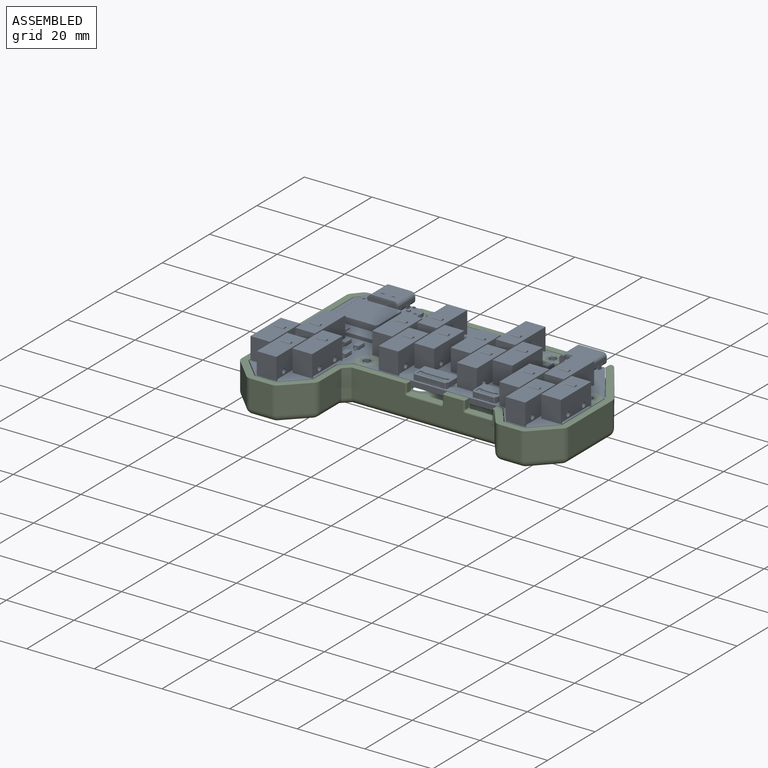
[diagram: assembled view]
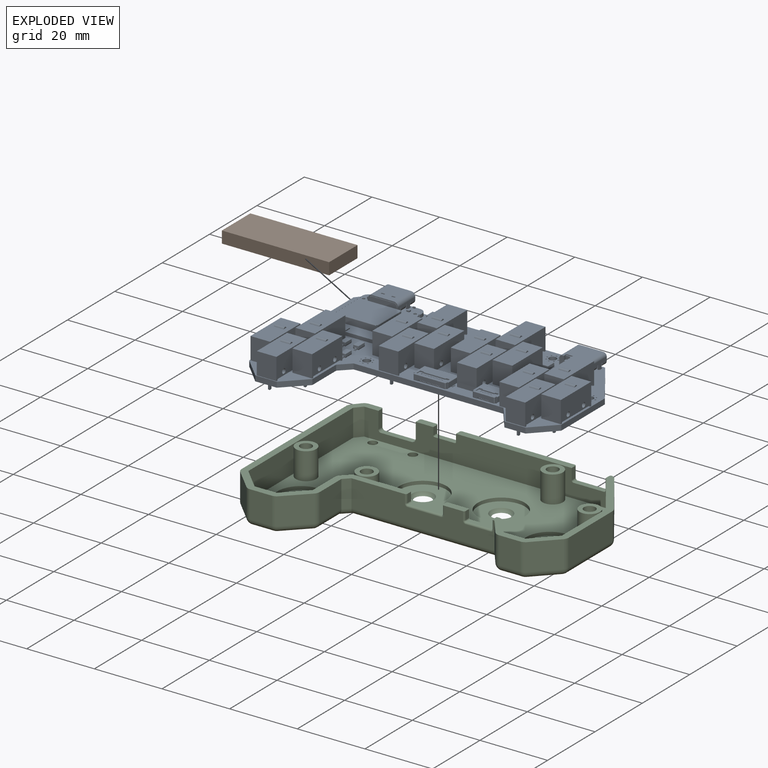
[diagram: exploded view]
GUIDED TOUR — FREECAD ASSEMBLY "left"

This assembly has 3 components, labeled P0..P2 below (a component is one placed body or linked part; the same part can appear more than once), held together by 0 modeled joints plus 2 derived contact edges. A joint is a constraint between two components; its type names the relative motion it leaves free:
  CONTACT — a derived adjacency edge — the two components touch in the source model (clearance under 2% of the assembly's diagonal); it is measured from the geometry, not a modeled constraint.
Axis/direction vectors are unit vectors and 'through' points are millimeter coordinates, both in the assembly's world frame.

MATES
  1. CONTACT "contact_0_1": P0 <-> P1, contact direction (-0.830, 0.554, -0.070) through (31.34, -14.37, -1.85) mm (derived from contact, not a modeled constraint)
  2. CONTACT "contact_0_2": P0 <-> P2, contact direction (0.000, 0.000, -1.000) through (59.84, -1.36, 0.00) mm (derived from contact, not a modeled constraint)

ASSEMBLY ORDER
  1. P0 — the base component [order heuristic]
  2. P2 — core [order heuristic]
  3. P1 [order verified]
Order-tag legend:
  [order verified] — this step's position reverses a verified removal order: the component was checked to insert without passing through the ones already placed.
  [order heuristic] — the first 2 components form the assembly's core: parts whose collision-free extraction could not be verified, listed in mate-graph order.

Of the 3 components, 2 carry a construction recipe — the FreeCAD feature program (sketches with constraints, then the solid features that consume them) that regenerates the part from scratch, quoted from this document or from the linked companion document it references; the rest are supplied as boundary geometry only. The tour below walks the components in assembly order: each is shown spotlighted twice — in the assembled view, then in the exploded view, where a leader line traces a displaced component back to its assembled socket (components that stay in place when exploded have no leader line; saturated green if recipe-attached, orange if geometry-only; every other component desaturated gray) — followed by its recipe or geometry summary and the mates that hold it.
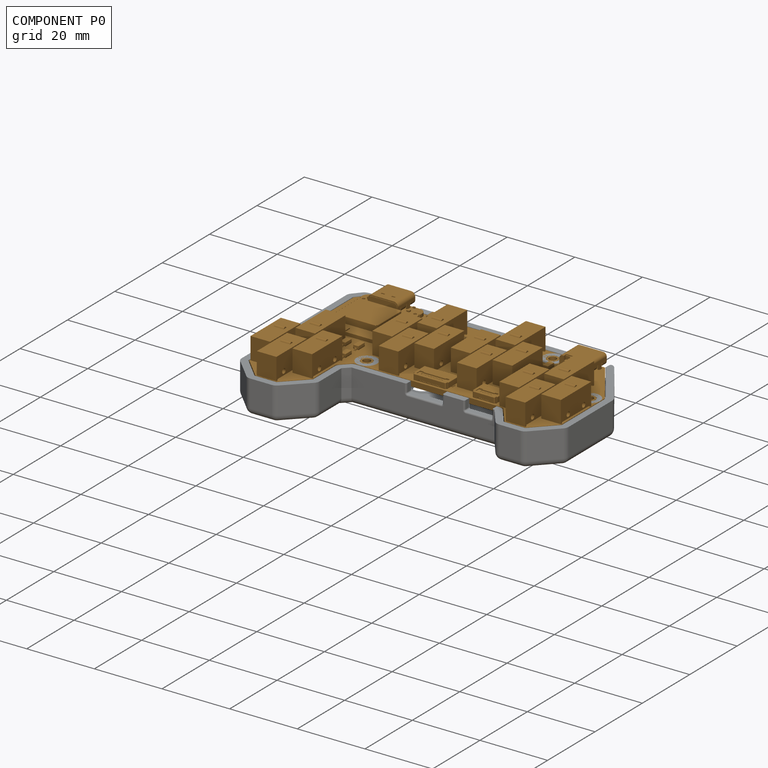
[diagram: component P0 — assembled]
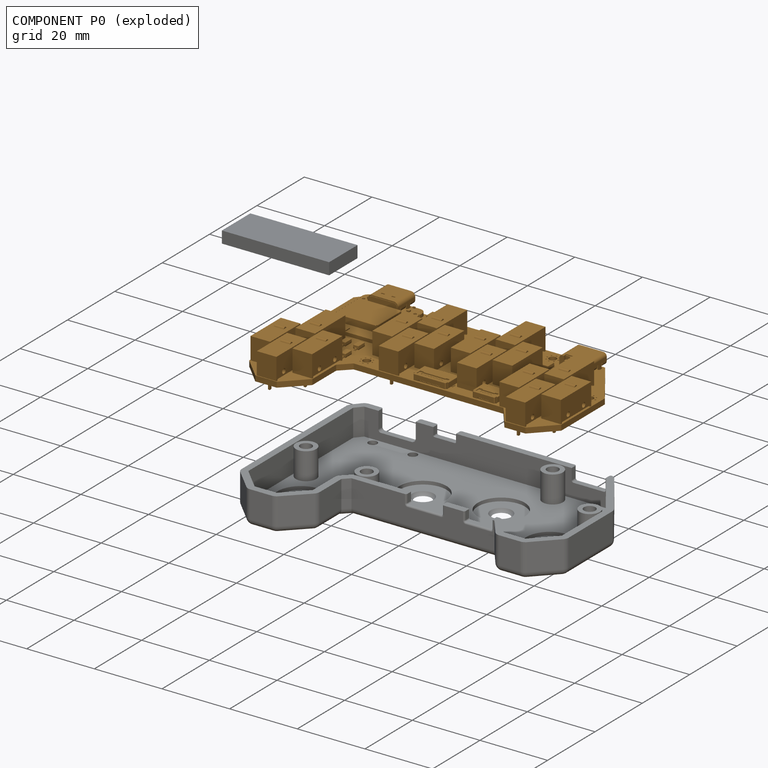
[diagram: component P0 — exploded]
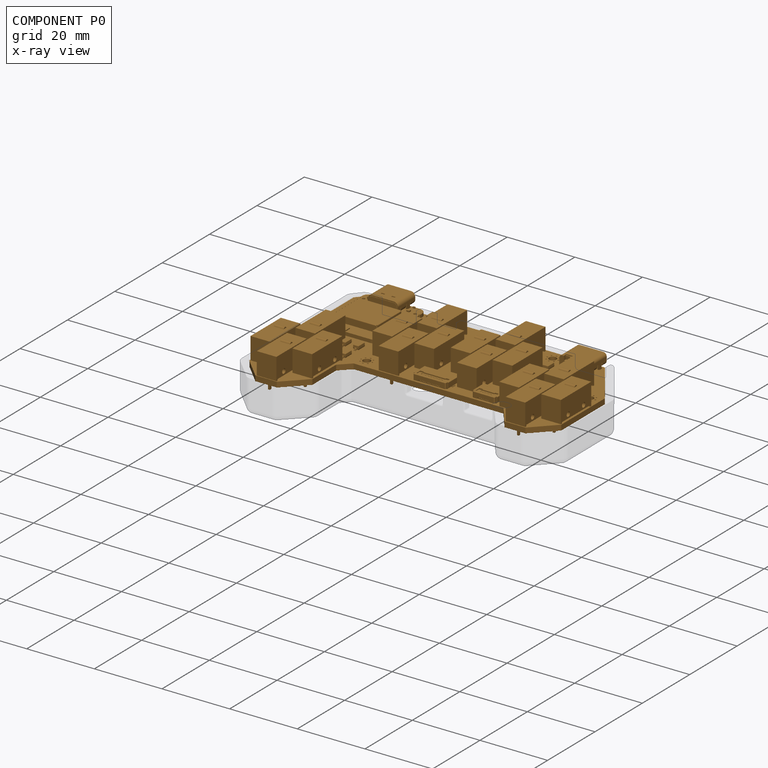
[diagram: component P0 — x-ray view]
COMPONENT P0 — geometry summary ("left"; no construction recipe available for this part):
  bounding box: 83.1 x 53.8 x 10.4 mm
  tessellated surface: 159,930 triangles
  volume: 12785 mm^3 (27% of its bounding box)
Held by: resting contact with P1 (derived edge); resting contact with P2 (derived edge).
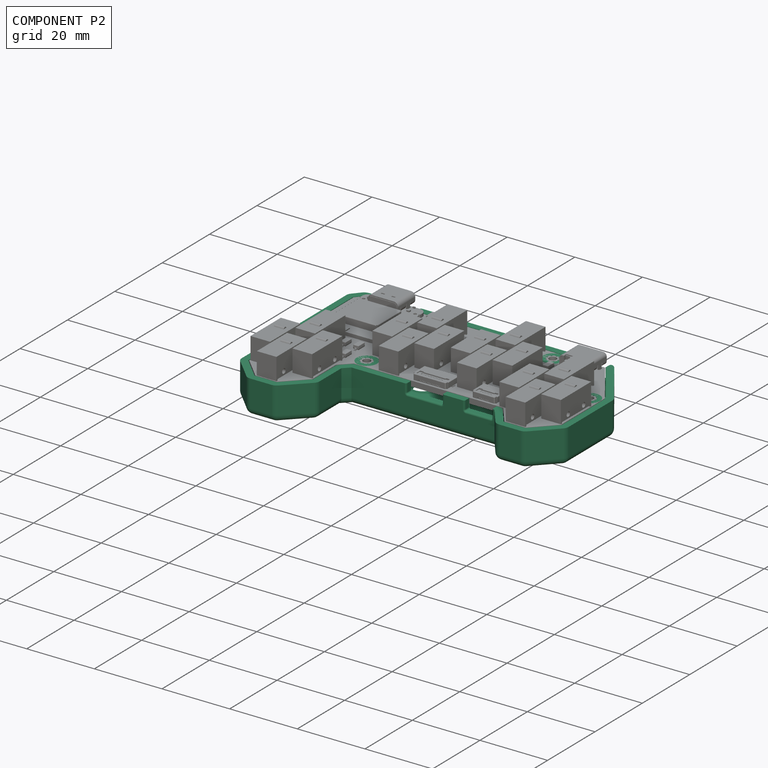
[diagram: component P2 — assembled]
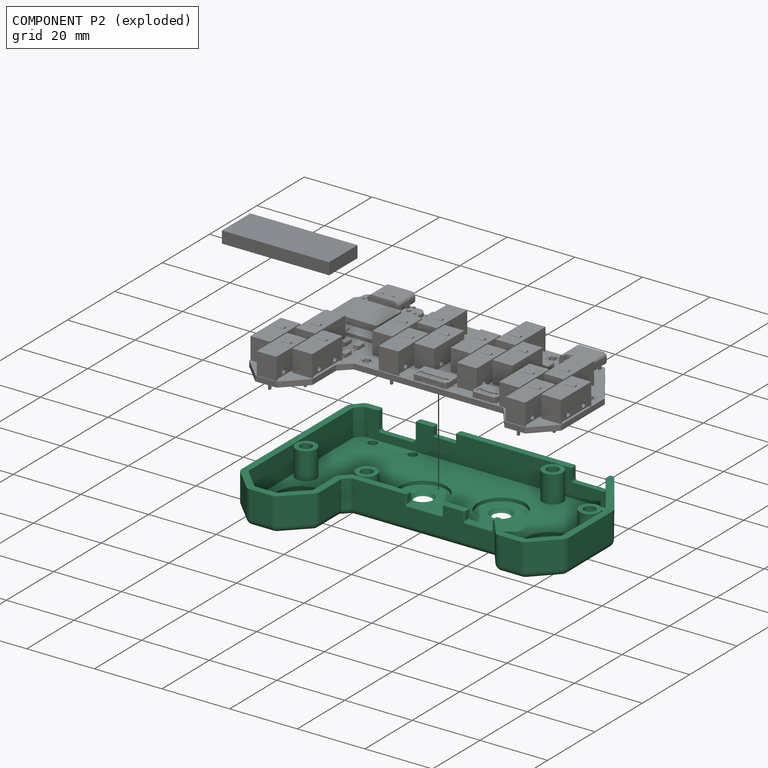
[diagram: component P2 — exploded]
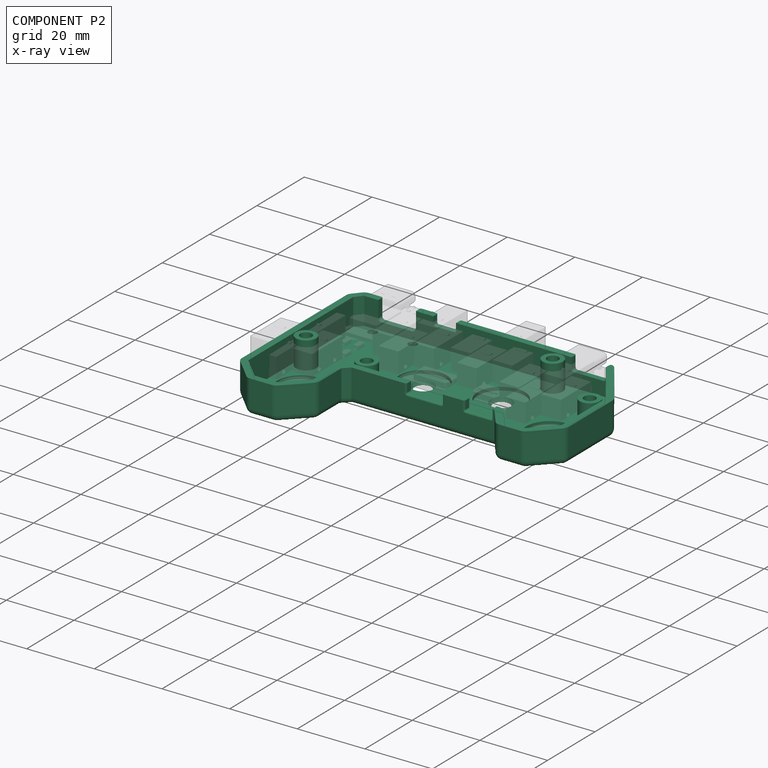
[diagram: component P2 — x-ray view]
COMPONENT P2 — recipe-attached ("case", modeled in this document).
Held by: resting contact with P0 (derived edge).
Construction recipe (the document's own serialized feature program — sketch geometry with constraints, then the solid features built on it; lengths are millimeters unless a unit is written):

FEATURE [PartDesign::SubShapeBinder] Binder
  BindCopyOnChange = 0
  BindMode = 0
  ClaimChildren = false
  Context = -> Part [Body.Binder.]
  Fuse = false
  MakeFace = true
  OffsetFill = false
  OffsetIntersection = false
  OffsetJoinType = 0
  OffsetOpenResult = false
  PartialLoad = false
  Refine = true
  Relative = true
  Support = -> [Board_f9e4[Board_Geoms_f9e4.Pcb_f9e4.Face140]]
  _Version = 2
FEATURE [PartDesign::SubShapeBinder] Binder001
  BindCopyOnChange = 0
  BindMode = 0
  ClaimChildren = false
  Context = -> Part [Part001.Body001.Binder001.]
  Fuse = false
  MakeFace = true
  OffsetFill = false
  OffsetIntersection = false
  OffsetJoinType = 0
  OffsetOpenResult = false
  PartialLoad = false
  Refine = true
  Relative = true
  Support = -> [Body[Chamfer.Face70,Chamfer.Face69,Chamfer.Face68,Chamfer.Face38]]
  _Version = 2
FEATURE [Sketcher::SketchObject] Sketch004
  ArcFitTolerance = 1e-06
  AttacherType = Attacher::AttachEngine3D
  ExternalGeometry = -> [Binder001]
  FullyConstrained = false
  MakeInternals = false
  MapMode = 5
  Placement = pos=(0,0,8.003) rot=(1,0,0;3.14159rad)
  sketch-geometry (8):
    g0: Circle CenterX=3.03327 CenterY=26.4 CenterZ=0 NormalX=0 NormalY=0 NormalZ=1 AngleXU=0 Radius=3
    g1: Circle CenterX=23.45 CenterY=29.9 CenterZ=0 NormalX=0 NormalY=0 NormalZ=1 AngleXU=0 Radius=3
    g2: Circle CenterX=59.6333 CenterY=3.05 CenterZ=0 NormalX=0 NormalY=0 NormalZ=1 AngleXU=0 Radius=3
    g3: Circle CenterX=79.9833 CenterY=16.4867 CenterZ=0 NormalX=0 NormalY=0 NormalZ=1 AngleXU=0 Radius=3
    g4: Circle CenterX=3.03327 CenterY=26.4 CenterZ=0 NormalX=0 NormalY=0 NormalZ=1 AngleXU=0 Radius=1.7
    g5: Circle CenterX=23.45 CenterY=29.9 CenterZ=0 NormalX=0 NormalY=0 NormalZ=1 AngleXU=0 Radius=1.7
    g6: Circle CenterX=59.6333 CenterY=3.05 CenterZ=0 NormalX=0 NormalY=0 NormalZ=1 AngleXU=0 Radius=1.7
    g7: Circle CenterX=79.9833 CenterY=16.4867 CenterZ=0 NormalX=0 NormalY=0 NormalZ=1 AngleXU=0 Radius=1.7
  constraints (8):
    c: Diameter(g4) = 3.4
    c: Coincident(g4,g0)
    c: Coincident(g5,g1)
    c: Coincident(g6,g2)
    c: Coincident(g7,g3)
    c: Equal(g7,g6)
    c: Equal(g6,g5)
    c: Equal(g5,g4)
FEATURE [PartDesign::SubShapeBinder] Binder002
  BindCopyOnChange = 0
  BindMode = 0
  ClaimChildren = false
  Context = -> Part [Part001.Body001.Binder002.]
  Fuse = false
  MakeFace = true
  OffsetFill = false
  OffsetIntersection = false
  OffsetJoinType = 0
  OffsetOpenResult = false
  PartialLoad = false
  Refine = true
  Relative = true
  Support = -> [Board_f9e4[Board_Geoms_f9e4.Pcb_f9e4.Edge65,Board_Geoms_f9e4.Pcb_f9e4.Edge191,Board_Geoms_f9e4.Pcb_f9e4.Edge248,Board_Geoms_f9e4.Pcb_f9e4.Edge254]]
  _Version = 2
FEATURE [Sketcher::SketchObject] Sketch011
  ArcFitTolerance = 1e-06
  FullyConstrained = false
  MakeInternals = false
  sketch-geometry (25):
    g0: LineSegment StartX=84.8676 StartY=-13.2459 StartZ=0 EndX=74.8076 EndY=1.25408 EndZ=0
    g1: ArcOfCircle CenterX=73 CenterY=0 CenterZ=0 NormalX=0 NormalY=0 NormalZ=1 AngleXU=-3.14159 Radius=2.2 StartAngle=3.74814 EndAngle=4.71239
    g2: LineSegment StartX=73 StartY=2.2 StartZ=0 EndX=1.7 EndY=2.2 EndZ=0
    g3: ArcOfCircle CenterX=1.7 CenterY=0 CenterZ=0 NormalX=0 NormalY=0 NormalZ=1 AngleXU=-2.28781 Radius=2.2 StartAngle=3.8586 EndAngle=4.71239
    g4: LineSegment StartX=0.0417 StartY=1.4457 StartZ=0 EndX=-1.6583 EndY=-0.504303 EndZ=0
    g5: ArcOfCircle CenterX=0 CenterY=-1.95 CenterZ=0 NormalX=0 NormalY=0 NormalZ=1 AngleXU=-1.5708 Radius=2.2 StartAngle=3.99538 EndAngle=4.71239
    g6: LineSegment StartX=-2.2 StartY=-1.95 StartZ=0 EndX=-2.2 EndY=-46.05 EndZ=0
    g7: ArcOfCircle CenterX=0 CenterY=-46.05 CenterZ=0 NormalX=0 NormalY=0 NormalZ=1 AngleXU=-0.789447 Radius=2.2 StartAngle=3.93104 EndAngle=4.71239
    g8: LineSegment StartX=-1.56192 StartY=-47.5993 StartZ=0 EndX=4.58808 EndY=-53.7993 EndZ=0
    g9: ArcOfCircle CenterX=6.15 CenterY=-52.25 CenterZ=0 NormalX=0 NormalY=0 NormalZ=1 AngleXU=-1.9685e-05 Radius=2.2 StartAngle=3.92296 EndAngle=4.71239
    g10: LineSegment StartX=6.14996 StartY=-54.45 StartZ=0 EndX=12.5 EndY=-54.4501 EndZ=0
    g11: ArcOfCircle CenterX=12.5 CenterY=-52.2501 CenterZ=0 NormalX=0 NormalY=0 NormalZ=1 AngleXU=0.787024 Radius=2.2 StartAngle=3.92535 EndAngle=4.71239
    g12: LineSegment StartX=14.0582 StartY=-53.8032 StartZ=0 EndX=20.2382 EndY=-47.6031 EndZ=0
    g13: ArcOfCircle CenterX=18.68 CenterY=-46.05 CenterZ=0 NormalX=0 NormalY=0 NormalZ=1 AngleXU=1.5708 Radius=2.2 StartAngle=3.92862 EndAngle=4.71239
    g14: LineSegment StartX=20.88 StartY=-46.05 StartZ=0 EndX=20.88 EndY=-36.9262 EndZ=0
    g15: LineSegment StartX=20.88 StartY=-36.9262 StartZ=0 EndX=22.6464 EndY=-35.2 EndZ=0
    g16: LineSegment StartX=22.6464 StartY=-35.2 StartZ=0 EndX=64.9104 EndY=-35.2 EndZ=0
    g17: LineSegment StartX=64.9104 StartY=-35.2 StartZ=0 EndX=68.9403 EndY=-40.5705 EndZ=0
    g18: ArcOfCircle CenterX=70.7 CenterY=-39.25 CenterZ=0 NormalX=0 NormalY=0 NormalZ=1 AngleXU=0 Radius=2.2 StartAngle=3.78535 EndAngle=4.71239
    g19: LineSegment StartX=70.7 StartY=-41.45 StartZ=0 EndX=76.9 EndY=-41.45 EndZ=0
    g20: ArcOfCircle CenterX=76.9 CenterY=-39.25 CenterZ=0 NormalX=0 NormalY=0 NormalZ=1 AngleXU=0.800585 Radius=2.2 StartAngle=3.9118 EndAngle=4.71239
    g21: LineSegment StartX=78.4791 StartY=-40.7818 StartZ=0 EndX=84.6391 EndY=-34.4318 EndZ=0
    g22: ArcOfCircle CenterX=83.06 CenterY=-32.9 CenterZ=0 NormalX=0 NormalY=0 NormalZ=1 AngleXU=1.5708 Radius=2.2 StartAngle=3.94218 EndAngle=4.71239
    g23: LineSegment StartX=85.26 StartY=-32.9 StartZ=0 EndX=85.26 EndY=-14.5 EndZ=0
    g24: ArcOfCircle CenterX=83.06 CenterY=-14.5 CenterZ=0 NormalX=0 NormalY=0 NormalZ=1 AngleXU=2.17734 Radius=2.2 StartAngle=4.10584 EndAngle=4.71239
  constraints (31):
    c: Coincident(g0,g1)
    c: Coincident(g1,g2)
    c: Horizontal(g2)
    c: Coincident(g2,g3)
    c: Coincident(g3,g4)
    c: Coincident(g4,g5)
    c: Coincident(g5,g6)
    c: Vertical(g6)
    c: Coincident(g6,g7)
    c: Coincident(g7,g8)
    c: Coincident(g8,g9)
    c: Coincident(g9,g10)
    c: Coincident(g10,g11)
    c: Coincident(g11,g12)
    c: Coincident(g12,g13)
    c: Coincident(g13,g14)
    c: Vertical(g14)
    c: Coincident(g14,g15)
    c: Coincident(g15,g16)
    c: Horizontal(g16)
    c: Coincident(g16,g17)
    c: Coincident(g17,g18)
    c: Coincident(g18,g19)
    c: Horizontal(g19)
    c: Coincident(g19,g20)
    c: Coincident(g20,g21)
    c: Coincident(g21,g22)
    c: Coincident(g22,g23)
    c: Vertical(g23)
    c: Coincident(g23,g24)
    c: Coincident(g24,g0)
FEATURE [PartDesign::Pad] Pad005
  Direction = (0,0,1)
  Length = 8
  Length2 = 10
  Profile = -> Sketch011
  ReferenceAxis = -> Sketch011 [N_Axis]
  Refine = true
  Reversed = true
  Suppressed = false
  Type = 0
FEATURE [PartDesign::Thickness] Thickness
  Base = -> Pad005 [Face26]
  BaseFeature = -> Pad005
  Intersection = false
  Join = 0
  Mode = 0
  Refine = true
  Reversed = true
  SupportTransform = false
  Suppressed = false
  Value = 2
FEATURE [Sketcher::SketchObject] Sketch001
  ArcFitTolerance = 1e-06
  AttacherType = Attacher::AttachEngine3D
  AttachmentSupport = -> [Thickness]
  ExternalGeometry = -> [Binder,Thickness]
  FullyConstrained = false
  MakeInternals = false
  MapMode = 5
  Placement = pos=(0,0,-6) rot=(0,0,1;0rad)
  sketch-geometry (23):
    g0: Circle CenterX=59.6333 CenterY=-3.05 CenterZ=0 NormalX=0 NormalY=0 NormalZ=1 AngleXU=0 Radius=3
    g1: Circle CenterX=79.9833 CenterY=-16.4867 CenterZ=0 NormalX=0 NormalY=0 NormalZ=1 AngleXU=0 Radius=3
    g2: Circle CenterX=23.45 CenterY=-29.9 CenterZ=0 NormalX=0 NormalY=0 NormalZ=1 AngleXU=0 Radius=3
    g3: Circle CenterX=3.03327 CenterY=-26.4 CenterZ=0 NormalX=0 NormalY=0 NormalZ=1 AngleXU=0 Radius=3
    g4: Circle CenterX=66.5764 CenterY=-13.7434 CenterZ=0 NormalX=0 NormalY=0 NormalZ=1 AngleXU=0 Radius=6.5
    g5: LineSegment StartX=18.9633 StartY=-46.3324 StartZ=0 EndX=12.7833 EndY=-46.3324 EndZ=0
    g6: LineSegment StartX=12.7833 StartY=-46.3324 StartZ=0 EndX=12.7833 EndY=-52.5325 EndZ=0
    g7: LineSegment StartX=12.7833 StartY=-52.5325 StartZ=0 EndX=18.9633 EndY=-46.3324 EndZ=0
    g8: LineSegment StartX=5.86601 StartY=-52.5317 StartZ=0 EndX=5.86601 EndY=-46.3317 EndZ=0
    g9: LineSegment StartX=5.86601 StartY=-46.3317 StartZ=0 EndX=-0.283985 EndY=-46.3317 EndZ=0
    g10: LineSegment StartX=-0.283985 StartY=-46.3317 StartZ=0 EndX=5.86601 EndY=-52.5317 EndZ=0
    g11: LineSegment StartX=-0.301509 StartY=-1.68715 StartZ=0 EndX=20.8379 EndY=-1.68715 EndZ=0
    g12: LineSegment StartX=20.8379 StartY=-1.68715 StartZ=0 EndX=20.8379 EndY=0.4 EndZ=0
    g13: LineSegment StartX=20.8379 StartY=0.4 StartZ=0 EndX=-0.301509 EndY=0.4 EndZ=0
    g14: LineSegment StartX=-0.301509 StartY=0.4 StartZ=0 EndX=-0.301509 EndY=-1.68715 EndZ=0
    g15: LineSegment StartX=70.3801 StartY=-39.4901 StartZ=0 EndX=70.3801 EndY=-33.2 EndZ=0
    g16: LineSegment StartX=70.3801 StartY=-33.2 StartZ=0 EndX=64.9104 EndY=-33.2 EndZ=0
    g17: LineSegment StartX=64.9104 StartY=-33.2 StartZ=0 EndX=70.3801 EndY=-39.4901 EndZ=0
    g18: LineSegment StartX=83.3629 StartY=-33.1938 StartZ=0 EndX=77.1871 EndY=-33.1938 EndZ=0
    g19: LineSegment StartX=77.1871 StartY=-33.1938 StartZ=0 EndX=77.1871 EndY=-39.5285 EndZ=0
    g20: LineSegment StartX=77.1871 StartY=-39.5285 StartZ=0 EndX=83.3629 EndY=-33.1938 EndZ=0
    g21: Circle CenterX=42.3003 CenterY=-9.94794 CenterZ=0 NormalX=0 NormalY=0 NormalZ=1 AngleXU=0 Radius=1.5
    g22: Circle CenterX=42.6724 CenterY=-24.9376 CenterZ=0 NormalX=0 NormalY=0 NormalZ=1 AngleXU=0 Radius=1.5
  constraints (46):
    c: Diameter(g0) = 6
    c: Coincident(g0,g-3)
    c: Diameter(g1) = 6
    c: Coincident(g1,g-4)
    c: Diameter(g2) = 6
    c: Coincident(g2,g-5)
    c: Diameter(g3) = 6
    c: Coincident(g3,g-6)
    c: Diameter(g4) = 13
    c: Coincident(g5,g-7)
    c: Horizontal(g5)
    c: Coincident(g5,g6)
    c: Coincident(g6,g-7)
    c: Vertical(g6)
    c: Coincident(g6,g7)
    c: Coincident(g7,g5)
    c: Coincident(g-8,g8)
    c: Vertical(g8)
    c: Coincident(g8,g9)
    c: Coincident(g9,g-8)
    c: Horizontal(g9)
    c: Coincident(g9,g10)
    c: Coincident(g10,g8)
    c: Coincident(g11,g12)
    c: Coincident(g12,g13)
    c: Coincident(g13,g14)
    c: Coincident(g14,g11)
    c: Horizontal(g11)
    c: Horizontal(g13)
    c: Vertical(g12)
    c: Vertical(g14)
    c: Coincident(g11,g-9)
    c: PointOnObject(g12,g-10)
    c: Vertical(g15)
    c: Coincident(g15,g16)
    c: Horizontal(g16)
    c: Coincident(g16,g17)
    c: Coincident(g17,g15)
    c: Horizontal(g18)
    c: Coincident(g18,g19)
    c: Vertical(g19)
    c: Coincident(g19,g20)
    c: Diameter(g21) = 3
    c: Diameter(g22) = 3
    c: Coincident(g16,g-11)
    c: Coincident(g18,g20)
FEATURE [PartDesign::Pad] Pad001
  BaseFeature = -> Thickness
  Direction = (0,0,1)
  Length = 4.3
  Length2 = 10
  Profile = -> Sketch001
  ReferenceAxis = -> Sketch001 [N_Axis]
  Refine = true
  Suppressed = false
  Type = 0
FEATURE [Sketcher::SketchObject] Sketch002
  ArcFitTolerance = 1e-06
  AttachmentSupport = -> [Pad001]
  ExternalGeometry = -> [Pad001]
  FullyConstrained = true
  MakeInternals = false
  MapMode = 5
  Placement = pos=(0,0,-1.7) rot=(0,0,1;0rad)
  sketch-geometry (5):
    g0: Circle CenterX=66.5764 CenterY=-13.7434 CenterZ=0 NormalX=0 NormalY=0 NormalZ=1 AngleXU=0 Radius=3.9
    g1: Circle CenterX=59.6333 CenterY=-3.05 CenterZ=0 NormalX=0 NormalY=0 NormalZ=1 AngleXU=0 Radius=1.25
    g2: Circle CenterX=79.9833 CenterY=-16.4867 CenterZ=0 NormalX=0 NormalY=0 NormalZ=1 AngleXU=0 Radius=1.25
    g3: Circle CenterX=23.45 CenterY=-29.9 CenterZ=0 NormalX=0 NormalY=0 NormalZ=1 AngleXU=0 Radius=1.25
    g4: Circle CenterX=3.03327 CenterY=-26.4 CenterZ=0 NormalX=0 NormalY=0 NormalZ=1 AngleXU=0 Radius=1.25
  constraints (10):
    c: Diameter(g0) = 7.8
    c: Coincident(g0,g-3)
    c: Diameter(g1) = 2.5
    c: Coincident(g1,g-4)
    c: Diameter(g2) = 2.5
    c: Coincident(g2,g-5)
    c: Diameter(g3) = 2.5
    c: Coincident(g3,g-6)
    c: Diameter(g4) = 2.5
    c: Coincident(g4,g-7)
FEATURE [PartDesign::Pocket] Pocket
  BaseFeature = -> Pad001
  Direction = (0,0,-1)
  Length = 5
  Length2 = 5
  Profile = -> Sketch002
  ReferenceAxis = -> Sketch002 [N_Axis]
  Refine = true
  Suppressed = false
  Type = 1
FEATURE [PartDesign::Chamfer] Chamfer
  Angle = 45
  Base = -> Pocket [Edge85,Edge87,Edge84,Edge83]
  BaseFeature = -> Pocket
  ChamferType = 1
  FlipDirection = false
  Refine = true
  Size = 0.75
  Size2 = 1.5
  SupportTransform = false
  Suppressed = false
  UseAllEdges = false
FEATURE [PartDesign::Body] Body  label="base"
  AllowCompound = false
  Group = -> [Pad005,Binder,Thickness,Sketch001,Pad001,Sketch002,Pocket,Chamfer,Sketch011]
  Origin = -> Origin025
  Tip = -> Chamfer
FEATURE [Sketcher::SketchObject] Sketch012
  ArcFitTolerance = 1e-06
  FullyConstrained = false
  MakeInternals = false
  sketch-geometry (25):
    g0: LineSegment StartX=84.8676 StartY=-13.2459 StartZ=0 EndX=74.8076 EndY=1.25408 EndZ=0
    g1: ArcOfCircle CenterX=73 CenterY=0 CenterZ=0 NormalX=0 NormalY=0 NormalZ=1 AngleXU=-3.14159 Radius=2.2 StartAngle=3.74814 EndAngle=4.71239
    g2: LineSegment StartX=73 StartY=2.2 StartZ=0 EndX=1.7 EndY=2.2 EndZ=0
    g3: ArcOfCircle CenterX=1.7 CenterY=0 CenterZ=0 NormalX=0 NormalY=0 NormalZ=1 AngleXU=-2.28781 Radius=2.2 StartAngle=3.8586 EndAngle=4.71239
    g4: LineSegment StartX=0.0417 StartY=1.4457 StartZ=0 EndX=-1.6583 EndY=-0.504303 EndZ=0
    g5: ArcOfCircle CenterX=0 CenterY=-1.95 CenterZ=0 NormalX=0 NormalY=0 NormalZ=1 AngleXU=-1.5708 Radius=2.2 StartAngle=3.99538 EndAngle=4.71239
    g6: LineSegment StartX=-2.2 StartY=-1.95 StartZ=0 EndX=-2.2 EndY=-46.05 EndZ=0
    g7: ArcOfCircle CenterX=0 CenterY=-46.05 CenterZ=0 NormalX=0 NormalY=0 NormalZ=1 AngleXU=-0.789447 Radius=2.2 StartAngle=3.93104 EndAngle=4.71239
    g8: LineSegment StartX=-1.56192 StartY=-47.5993 StartZ=0 EndX=4.58808 EndY=-53.7993 EndZ=0
    g9: ArcOfCircle CenterX=6.15 CenterY=-52.25 CenterZ=0 NormalX=0 NormalY=0 NormalZ=1 AngleXU=-1.9685e-05 Radius=2.2 StartAngle=3.92296 EndAngle=4.71239
    g10: LineSegment StartX=6.14996 StartY=-54.45 StartZ=0 EndX=12.5 EndY=-54.4501 EndZ=0
    g11: ArcOfCircle CenterX=12.5 CenterY=-52.2501 CenterZ=0 NormalX=0 NormalY=0 NormalZ=1 AngleXU=0.787024 Radius=2.2 StartAngle=3.92535 EndAngle=4.71239
    g12: LineSegment StartX=14.0582 StartY=-53.8032 StartZ=0 EndX=20.2382 EndY=-47.6031 EndZ=0
    g13: ArcOfCircle CenterX=18.68 CenterY=-46.05 CenterZ=0 NormalX=0 NormalY=0 NormalZ=1 AngleXU=1.5708 Radius=2.2 StartAngle=3.92862 EndAngle=4.71239
    g14: LineSegment StartX=20.88 StartY=-46.05 StartZ=0 EndX=20.88 EndY=-36.9262 EndZ=0
    g15: LineSegment StartX=20.88 StartY=-36.9262 StartZ=0 EndX=22.6464 EndY=-35.2 EndZ=0
    g16: LineSegment StartX=22.6464 StartY=-35.2 StartZ=0 EndX=64.9104 EndY=-35.2 EndZ=0
    g17: LineSegment StartX=64.9104 StartY=-35.2 StartZ=0 EndX=68.9403 EndY=-40.5705 EndZ=0
    g18: ArcOfCircle CenterX=70.7 CenterY=-39.25 CenterZ=0 NormalX=0 NormalY=0 NormalZ=1 AngleXU=0 Radius=2.2 StartAngle=3.78535 EndAngle=4.71239
    g19: LineSegment StartX=70.7 StartY=-41.45 StartZ=0 EndX=76.9 EndY=-41.45 EndZ=0
    g20: ArcOfCircle CenterX=76.9 CenterY=-39.25 CenterZ=0 NormalX=0 NormalY=0 NormalZ=1 AngleXU=0.800585 Radius=2.2 StartAngle=3.9118 EndAngle=4.71239
    g21: LineSegment StartX=78.4791 StartY=-40.7818 StartZ=0 EndX=84.6391 EndY=-34.4318 EndZ=0
    g22: ArcOfCircle CenterX=83.06 CenterY=-32.9 CenterZ=0 NormalX=0 NormalY=0 NormalZ=1 AngleXU=1.5708 Radius=2.2 StartAngle=3.94218 EndAngle=4.71239
    g23: LineSegment StartX=85.26 StartY=-32.9 StartZ=0 EndX=85.26 EndY=-14.5 EndZ=0
    g24: ArcOfCircle CenterX=83.06 CenterY=-14.5 CenterZ=0 NormalX=0 NormalY=0 NormalZ=1 AngleXU=2.17734 Radius=2.2 StartAngle=4.10584 EndAngle=4.71239
  constraints (31):
    c: Coincident(g0,g1)
    c: Coincident(g1,g2)
    c: Horizontal(g2)
    c: Coincident(g2,g3)
    c: Coincident(g3,g4)
    c: Coincident(g4,g5)
    c: Coincident(g5,g6)
    c: Vertical(g6)
    c: Coincident(g6,g7)
    c: Coincident(g7,g8)
    c: Coincident(g8,g9)
    c: Coincident(g9,g10)
    c: Coincident(g10,g11)
    c: Coincident(g11,g12)
    c: Coincident(g12,g13)
    c: Coincident(g13,g14)
    c: Vertical(g14)
    c: Coincident(g14,g15)
    c: Coincident(g15,g16)
    c: Horizontal(g16)
    c: Coincident(g16,g17)
    c: Coincident(g17,g18)
    c: Coincident(g18,g19)
    c: Horizontal(g19)
    c: Coincident(g19,g20)
    c: Coincident(g20,g21)
    c: Coincident(g21,g22)
    c: Coincident(g22,g23)
    c: Vertical(g23)
    c: Coincident(g23,g24)
    c: Coincident(g24,g0)
FEATURE [PartDesign::Pad] Pad
  Direction = (0,0,1)
  Length = 10.003
  Length2 = 10
  Profile = -> Sketch012
  ReferenceAxis = -> Sketch012 [N_Axis]
  Refine = true
  Suppressed = false
  Type = 0
  expr: Length = <<vars>>#VarSet.Base_recess_height
FEATURE [PartDesign::Thickness] Thickness001
  Base = -> Pad [Face26]
  BaseFeature = -> Pad
  Intersection = false
  Join = 0
  Mode = 0
  Refine = true
  Reversed = true
  SupportTransform = false
  Suppressed = false
  Value = 2
FEATURE [PartDesign::Pad] Pad003
  BaseFeature = -> Thickness001
  Direction = (0,-1e-16,-1)
  Length = 8.003
  Length2 = 10
  Profile = -> Sketch004
  ReferenceAxis = -> Sketch004 [N_Axis]
  Refine = true
  Suppressed = false
  Type = 0
  expr: Length = <<vars>>#VarSet.Base_recess_height - <<vars>>#VarSet.wall_thickness
FEATURE [Sketcher::SketchObject] Sketch005
  ArcFitTolerance = 1e-06
  AttacherType = Attacher::AttachEngine3D
  AttachmentSupport = -> [Pad003]
  ExternalGeometry = -> [Binder002]
  FullyConstrained = false
  MakeInternals = false
  MapMode = 5
  Placement = pos=(0,0,10.003) rot=(0,0,1;0rad)
  sketch-geometry (9):
    g0: Circle CenterX=9.35 CenterY=-37.5 CenterZ=0 NormalX=0 NormalY=0 NormalZ=1 AngleXU=0 Radius=6.95
    g1: Circle CenterX=31.7937 CenterY=-18.09 CenterZ=0 NormalX=0 NormalY=0 NormalZ=1 AngleXU=0 Radius=6.95
    g2: Circle CenterX=52.85 CenterY=-15.09 CenterZ=0 NormalX=0 NormalY=0 NormalZ=1 AngleXU=0 Radius=6.95
    g3: Circle CenterX=73.75 CenterY=-24.42 CenterZ=0 NormalX=0 NormalY=0 NormalZ=1 AngleXU=0 Radius=6.95
    g4: GeomPoint X=73.75 Y=-24.42 Z=0
    g5: GeomPoint X=52.85 Y=-15.09 Z=0
    g6: GeomPoint X=31.7937 Y=-18.09 Z=0
    g7: GeomPoint X=9.35 Y=-37.5 Z=0
    g8: GeomPoint X=73.75 Y=-24.42 Z=0
  constraints (12):
    c: Coincident(g0,g-3)
    c: Coincident(g1,g-4)
    c: Coincident(g2,g-5)
    c: Diameter(g3) = 13.9
    c: Coincident(g3,g-6)
    c: Coincident(g4,g3)
    c: Coincident(g5,g2)
    c: Coincident(g6,g1)
    c: Coincident(g7,g0)
    c: Equal(g0,g1)
    c: Equal(g1,g2)
    c: Equal(g2,g3)
FEATURE [PartDesign::Pocket] Pocket001
  BaseFeature = -> Pad003
  Direction = (0,0,-1)
  Length = 6
  Length2 = 5
  Profile = -> Sketch005
  ReferenceAxis = -> Sketch005 [N_Axis]
  Refine = true
  Suppressed = false
  Type = 0
FEATURE [Sketcher::SketchObject] Sketch006
  ArcFitTolerance = 1e-06
  AttacherType = Attacher::AttachEngine3D
  AttachmentSupport = -> [Pocket001]
  FullyConstrained = false
  MakeInternals = false
  MapMode = 5
  Placement = pos=(0,2.2,0) rot=(0,0.707107,0.707107;3.14159rad)
  sketch-geometry (32):
    g0: LineSegment StartX=-28.7505 StartY=0 StartZ=0 EndX=-22.0594 EndY=0 EndZ=0
    g1: LineSegment StartX=-22.0594 StartY=0 StartZ=0 EndX=-22.0594 EndY=2.222 EndZ=0
    g2: LineSegment StartX=-22.4254 StartY=2.588 StartZ=0 EndX=-28.3845 EndY=2.588 EndZ=0
    g3: LineSegment StartX=-28.7505 StartY=2.222 StartZ=0 EndX=-28.7505 EndY=0 EndZ=0
    g4: ArcOfCircle CenterX=-28.3845 CenterY=2.222 CenterZ=0 NormalX=0 NormalY=0 NormalZ=1 AngleXU=0 Radius=0.365998 StartAngle=1.5708 EndAngle=3.14159
    g5: GeomPoint [constr] X=-28.7505 Y=2.588 Z=0
    g6: ArcOfCircle CenterX=-22.4254 CenterY=2.222 CenterZ=0 NormalX=0 NormalY=0 NormalZ=1 AngleXU=0 Radius=0.365998 StartAngle=0 EndAngle=1.5708
    g7: GeomPoint [constr] X=-22.0594 Y=2.588 Z=0
    g8: LineSegment [constr] StartX=-72.48 StartY=-6.2e-15 StartZ=0 EndX=-63.4826 EndY=-6.2e-15 EndZ=0
    g9: LineSegment [constr] StartX=-63.4826 StartY=-6.2e-15 StartZ=0 EndX=-63.4826 EndY=3.28656 EndZ=0
    g10: LineSegment [constr] StartX=-63.4826 StartY=3.28656 StartZ=0 EndX=-72.48 EndY=3.28656 EndZ=0
    g11: LineSegment [constr] StartX=-72.48 StartY=3.28656 StartZ=0 EndX=-72.48 EndY=-6.2e-15 EndZ=0
    g12: LineSegment StartX=-73 StartY=-6.2e-15 StartZ=0 EndX=-62.9626 EndY=-6.2e-15 EndZ=0
    g13: LineSegment StartX=-62.9626 StartY=-6.2e-15 StartZ=0 EndX=-62.9626 EndY=3.26823 EndZ=0
    g14: LineSegment StartX=-63.5009 StartY=3.80656 StartZ=0 EndX=-72.4617 EndY=3.80656 EndZ=0
    g15: LineSegment StartX=-73 StartY=3.26823 StartZ=0 EndX=-73 EndY=-6.2e-15 EndZ=0
    g16: ArcOfCircle CenterX=-72.4617 CenterY=3.26823 CenterZ=0 NormalX=0 NormalY=0 NormalZ=1 AngleXU=0 Radius=0.538329 StartAngle=1.5708 EndAngle=3.14159
    g17: GeomPoint [constr] X=-73 Y=3.80656 Z=0
    g18: ArcOfCircle CenterX=-63.5009 CenterY=3.26823 CenterZ=0 NormalX=0 NormalY=0 NormalZ=1 AngleXU=0 Radius=0.538329 StartAngle=0 EndAngle=1.5708
    g19: GeomPoint [constr] X=-62.9626 Y=3.80656 Z=0
    g20: LineSegment StartX=-16.8485 StartY=-1.4e-15 StartZ=0 EndX=-5.82396 EndY=-1.4e-15 EndZ=0
    g21: LineSegment StartX=-5.82396 StartY=-1.4e-15 StartZ=0 EndX=-5.82396 EndY=4.95211 EndZ=0
    g22: LineSegment StartX=-6.57186 StartY=5.7 StartZ=0 EndX=-15.6022 EndY=5.7 EndZ=0
    g23: LineSegment StartX=-16.8485 StartY=4.45371 StartZ=0 EndX=-16.8485 EndY=-1.8e-15 EndZ=0
    g24: LineSegment [constr] StartX=-15.8685 StartY=4.2 StartZ=0 EndX=-15.8685 EndY=0.98 EndZ=0
    g25: LineSegment [constr] StartX=-15.8685 StartY=0.98 StartZ=0 EndX=-6.80396 EndY=0.98 EndZ=0
    g26: LineSegment [constr] StartX=-6.80396 StartY=0.98 StartZ=0 EndX=-6.80396 EndY=4.2 EndZ=0
    g27: LineSegment [constr] StartX=-6.80396 StartY=4.2 StartZ=0 EndX=-15.8685 EndY=4.2 EndZ=0
    g28: ArcOfCircle CenterX=-15.6022 CenterY=4.45371 CenterZ=0 NormalX=0 NormalY=0 NormalZ=1 AngleXU=0 Radius=1.24629 StartAngle=1.5708 EndAngle=3.14159
    g29: GeomPoint [constr] X=-16.8485 Y=5.7 Z=0
    g30: ArcOfCircle CenterX=-6.57186 CenterY=4.95211 CenterZ=0 NormalX=0 NormalY=0 NormalZ=1 AngleXU=0 Radius=0.747894 StartAngle=0 EndAngle=1.5708
    g31: GeomPoint [constr] X=-5.82396 Y=5.7 Z=0
  constraints (70):
    c: Coincident(g0,g1)
    c: Coincident(g3,g0)
    c: Horizontal(g0)
    c: Horizontal(g2)
    c: Vertical(g1)
    c: Vertical(g3)
    c: PointOnObject(g0,g-1)
    c: PointOnObject(g5,g2)
    c: PointOnObject(g5,g3)
    c: Tangent(g2,g4) = -1.5708
    c: Tangent(g3,g4) = -1.5708
    c: PointOnObject(g7,g1)
    c: PointOnObject(g7,g2)
    c: Tangent(g1,g6) = -1.5708
    c: Tangent(g2,g6) = -1.5708
    c: Coincident(g8,g9)
    c: Coincident(g9,g10)
    c: Coincident(g10,g11)
    c: Coincident(g11,g8)
    c: Horizontal(g8)
    c: Horizontal(g10)
    c: Vertical(g9)
    c: Vertical(g11)
    c: PointOnObject(g8,g-3)
    c: Coincident(g12,g13)
    c: Coincident(g15,g12)
    c: Horizontal(g12)
    c: Horizontal(g14)
    c: Vertical(g13)
    c: Vertical(g15)
    c: Coincident(g12,g-4)
    c: Distance(g17,g11) = 0.52
    c: Distance(g10,g14) = 0.52
    c: Distance(g9,g13) = 0.52
    c: PointOnObject(g17,g14)
    c: PointOnObject(g17,g15)
    c: Tangent(g14,g16) = -1.5708
    c: Tangent(g15,g16) = -1.5708
    c: PointOnObject(g19,g13)
    c: PointOnObject(g19,g14)
    c: Tangent(g13,g18) = -1.5708
    c: Tangent(g14,g18) = -1.5708
    c: Coincident(g20,g21)
    c: Coincident(g23,g20)
    c: Horizontal(g20)
    c: Horizontal(g22)
    c: Vertical(g21)
    c: Vertical(g23)
    c: PointOnObject(g20,g-3)
    c: Coincident(g24,g25)
    c: Coincident(g25,g26)
    c: Coincident(g26,g27)
    c: Coincident(g27,g24)
    c: Vertical(g24)
    c: Vertical(g26)
    c: Horizontal(g25)
    c: Horizontal(g27)
    c: Distance(g25,g20) = 0.98
    c: Distance(g27,g22) = 1.5
    c: Distance(g24,g23) = 0.98
    c: Distance(g21,g26) = 0.98
    c: PointOnObject(g29,g22)
    c: PointOnObject(g29,g23)
    c: Tangent(g22,g28) = -1.5708
    c: Tangent(g23,g28) = -1.5708
    c: PointOnObject(g31,g21)
    c: PointOnObject(g31,g22)
    c: Tangent(g21,g30) = -1.5708
    c: Tangent(g22,g30) = -1.5708
    c: Distance(g20,g27) = 4.2
FEATURE [PartDesign::Pocket] Pocket003
  BaseFeature = -> Pocket001
  Direction = (0,-1,2e-16)
  Length = 2
  Length2 = 5
  Profile = -> Sketch006
  ReferenceAxis = -> Sketch006 [N_Axis]
  Refine = true
  Suppressed = false
  Type = 0
FEATURE [Sketcher::SketchObject] Sketch008
  ArcFitTolerance = 1e-06
  AttachmentSupport = -> [Pocket003]
  FullyConstrained = false
  MakeInternals = false
  MapMode = 5
  Placement = pos=(0,-35.2,0) rot=(1,0,0;1.5708rad)
  sketch-geometry (16):
    g0: LineSegment StartX=56.0511 StartY=0 StartZ=0 EndX=64.1851 EndY=0 EndZ=0
    g1: LineSegment StartX=64.1851 StartY=0 StartZ=0 EndX=64.1851 EndY=2.39197 EndZ=0
    g2: LineSegment StartX=63.7911 StartY=2.78597 StartZ=0 EndX=56.4451 EndY=2.78597 EndZ=0
    g3: LineSegment StartX=56.0511 StartY=2.39197 StartZ=0 EndX=56.0511 EndY=0 EndZ=0
    g4: ArcOfCircle CenterX=56.4451 CenterY=2.39197 CenterZ=0 NormalX=0 NormalY=0 NormalZ=1 AngleXU=0 Radius=0.393995 StartAngle=1.5708 EndAngle=3.14159
    g5: GeomPoint [constr] X=56.0511 Y=2.78597 Z=0
    g6: ArcOfCircle CenterX=63.7911 CenterY=2.39197 CenterZ=0 NormalX=0 NormalY=0 NormalZ=1 AngleXU=0 Radius=0.393995 StartAngle=0 EndAngle=1.5708
    g7: GeomPoint [constr] X=64.1851 Y=2.78597 Z=0
    g8: LineSegment StartX=38.8572 StartY=0 StartZ=0 EndX=49.5029 EndY=0 EndZ=0
    g9: LineSegment StartX=49.5029 StartY=0 StartZ=0 EndX=49.5029 EndY=2.42099 EndZ=0
    g10: LineSegment StartX=49.1041 StartY=2.81976 StartZ=0 EndX=39.2559 EndY=2.81976 EndZ=0
    g11: LineSegment StartX=38.8572 StartY=2.42099 StartZ=0 EndX=38.8572 EndY=0 EndZ=0
    g12: ArcOfCircle CenterX=39.2559 CenterY=2.42099 CenterZ=0 NormalX=0 NormalY=0 NormalZ=1 AngleXU=0 Radius=0.398774 StartAngle=1.5708 EndAngle=3.14159
    g13: GeomPoint [constr] X=38.8572 Y=2.81976 Z=0
    g14: ArcOfCircle CenterX=49.1041 CenterY=2.42099 CenterZ=0 NormalX=0 NormalY=0 NormalZ=1 AngleXU=0 Radius=0.398774 StartAngle=0 EndAngle=1.5708
    g15: GeomPoint [constr] X=49.5029 Y=2.81976 Z=0
  constraints (30):
    c: Coincident(g0,g1)
    c: Coincident(g3,g0)
    c: Horizontal(g0)
    c: Horizontal(g2)
    c: Vertical(g1)
    c: Vertical(g3)
    c: PointOnObject(g0,g-1)
    c: PointOnObject(g5,g2)
    c: PointOnObject(g5,g3)
    c: Tangent(g2,g4) = -1.5708
    c: Tangent(g3,g4) = -1.5708
    c: PointOnObject(g7,g1)
    c: PointOnObject(g7,g2)
    c: Tangent(g1,g6) = -1.5708
    c: Tangent(g2,g6) = -1.5708
    c: Coincident(g8,g9)
    c: Coincident(g11,g8)
    c: Horizontal(g8)
    c: Horizontal(g10)
    c: Vertical(g9)
    c: Vertical(g11)
    c: PointOnObject(g8,g-1)
    c: PointOnObject(g13,g10)
    c: PointOnObject(g13,g11)
    c: Tangent(g10,g12) = -1.5708
    c: Tangent(g11,g12) = -1.5708
    c: PointOnObject(g15,g9)
    c: PointOnObject(g15,g10)
    c: Tangent(g9,g14) = -1.5708
    c: Tangent(g10,g14) = -1.5708
FEATURE [PartDesign::Pocket] Pocket004
  BaseFeature = -> Pocket003
  Direction = (0,1,-2e-16)
  Length = 2
  Length2 = 5
  Profile = -> Sketch008
  ReferenceAxis = -> Sketch008 [N_Axis]
  Refine = true
  Suppressed = false
  Type = 0
FEATURE [PartDesign::Fillet] Fillet
  Base = -> Pocket004 [Edge48,Edge46,Edge50]
  BaseFeature = -> Pocket004
  Radius = 2
  Refine = true
  SupportTransform = false
  Suppressed = false
  UseAllEdges = false
FEATURE [PartDesign::Fillet] Fillet003
  Base = -> Fillet [Edge90,Edge87,Edge141,Edge153,Edge142]
  BaseFeature = -> Fillet
  Radius = 0.5
  Refine = true
  SupportTransform = false
  Suppressed = false
  UseAllEdges = false
FEATURE [Sketcher::SketchObject] Sketch
  ArcFitTolerance = 1e-06
  AttachmentSupport = -> [Fillet003]
  FullyConstrained = false
  MakeInternals = false
  MapMode = 5
  Placement = pos=(0,0,10.003) rot=(0,0,1;0rad)
  sketch-geometry (2):
    g0: Circle CenterX=5.34234 CenterY=-1.51764 CenterZ=0 NormalX=0 NormalY=0 NormalZ=1 AngleXU=0 Radius=1.3
    g1: Circle CenterX=17.1999 CenterY=-1.51907 CenterZ=0 NormalX=0 NormalY=0 NormalZ=1 AngleXU=0 Radius=1.3
  constraints (2):
    c: Diameter(g0) = 2.6
    c: Equal(g1,g0)
FEATURE [PartDesign::Pocket] Pocket005
  BaseFeature = -> Fillet003
  Direction = (0,0,-1)
  Length = 5
  Length2 = 5
  Profile = -> Sketch
  ReferenceAxis = -> Sketch [N_Axis]
  Refine = true
  Suppressed = false
  Type = 1
FEATURE [PartDesign::Fillet] Fillet004
  Base = -> Pocket005 [Edge280,Edge279]
  BaseFeature = -> Pocket005
  Radius = 0.4
  Refine = true
  SupportTransform = false
  Suppressed = false
  UseAllEdges = false
FEATURE [PartDesign::Body] Body001  label="top"
  AllowCompound = false
  Group = -> [Pad,Thickness001,Binder001,Sketch004,Pad003,Binder002,Sketch005,Pocket001,Sketch006,Pocket003,Sketch008,Pocket004,Fillet,Fillet003,Sketch012,Sketch,Pocket005,Fillet004]
  Origin = -> Origin027
  Tip = -> Fillet004
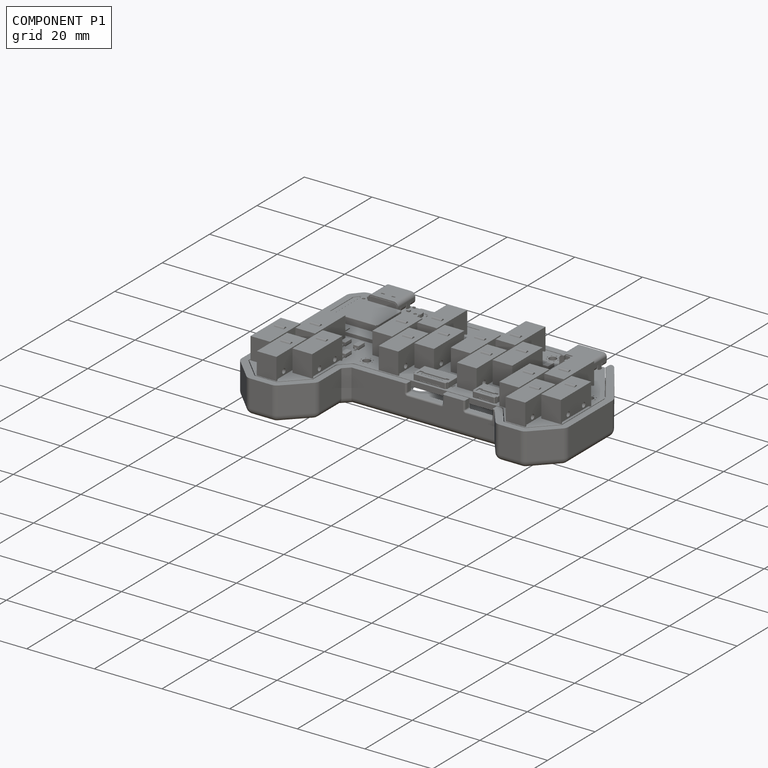
[diagram: component P1 — assembled]
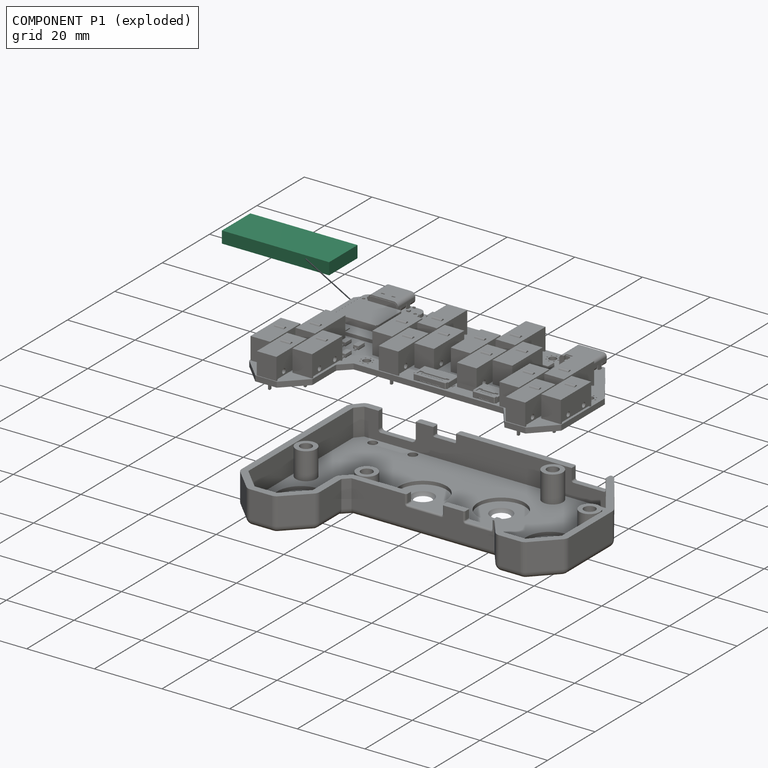
[diagram: component P1 — exploded]
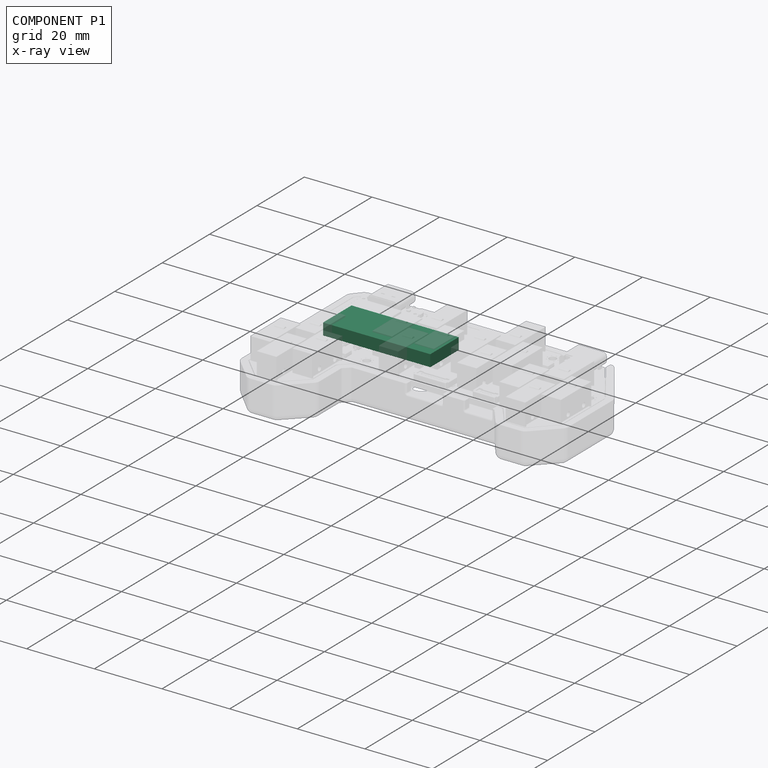
[diagram: component P1 — x-ray view]
COMPONENT P1 — recipe-attached ("battery", modeled in this document).
Held by: resting contact with P0 (derived edge).
Construction recipe (the document's own serialized feature program — sketch geometry with constraints, then the solid features built on it; lengths are millimeters unless a unit is written):

FEATURE [Sketcher::SketchObject] Sketch010
  ArcFitTolerance = 1e-06
  AttachmentSupport = -> [XY_Plane029]
  FullyConstrained = false
  MakeInternals = false
  MapMode = 5
  sketch-geometry (4):
    g0: LineSegment StartX=3.72384 StartY=-4.50541 StartZ=0 EndX=3.72384 EndY=-16.5054 EndZ=0
    g1: LineSegment StartX=3.72384 StartY=-16.5054 StartZ=0 EndX=35.4238 EndY=-16.5054 EndZ=0
    g2: LineSegment StartX=35.4238 StartY=-16.5054 StartZ=0 EndX=35.4238 EndY=-4.50541 EndZ=0
    g3: LineSegment StartX=35.4238 StartY=-4.50541 StartZ=0 EndX=3.72384 EndY=-4.50541 EndZ=0
  constraints (10):
    c: Coincident(g0,g1)
    c: Coincident(g1,g2)
    c: Coincident(g2,g3)
    c: Coincident(g3,g0)
    c: Vertical(g0)
    c: Vertical(g2)
    c: Horizontal(g1)
    c: Horizontal(g3)
    c: Distance(g0,g2) = 31.7
    c: Distance(g1,g3) = 12
FEATURE [PartDesign::Pad] Pad004
  Direction = (0,0,1)
  Length = 3.5
  Length2 = 10
  Profile = -> Sketch010
  ReferenceAxis = -> Sketch010 [N_Axis]
  Refine = true
  Suppressed = false
  Type = 0
FEATURE [PartDesign::Body] Body002  label="battery"
  AllowCompound = false
  Group = -> [Sketch010,Pad004]
  Origin = -> Origin029
  Placement = pos=(35.0599,-18.8471,-5.6) rot=(0,0,-1;3.14159rad)
  Tip = -> Pad004
PROVENANCE & LICENSES
Assembly and component geometry: a FreeCAD (.FCStd) document from a public repository crawl; components, placements and joints were extracted with FreeCAD and each solid tessellated.
Construction recipes: the document's own serialized feature recipes (and, for linked parts, the recipes of companion documents from the same project).
License: other.
Joints: native FreeCAD joints and A2plus constraints are mapped to standard mate types; edges marked 'derived from contact' connect touching components and are measured from the geometry, not modeled.
Verification: 2 of this assembly's 3 components carry a construction recipe (2 from this document itself); the rest are geometry-only. Every component's tessellation passed the extraction mesh gates (mesh-volume checksum against the B-rep where available, bounding-box inflation <= 2%).
Renders: orthographic iso camera (az 35 / el 25); the floor grid conveys scale (grid pitch printed in each image; no ruler). In the exploded view each component is displaced by its stored offset vector: the offsets alone carry the explosion direction (mate normal/axis signs are not orientation cues and do not encode it), and separation distances are assigned per mate-chain, not proportionally to assembly-order depth.
